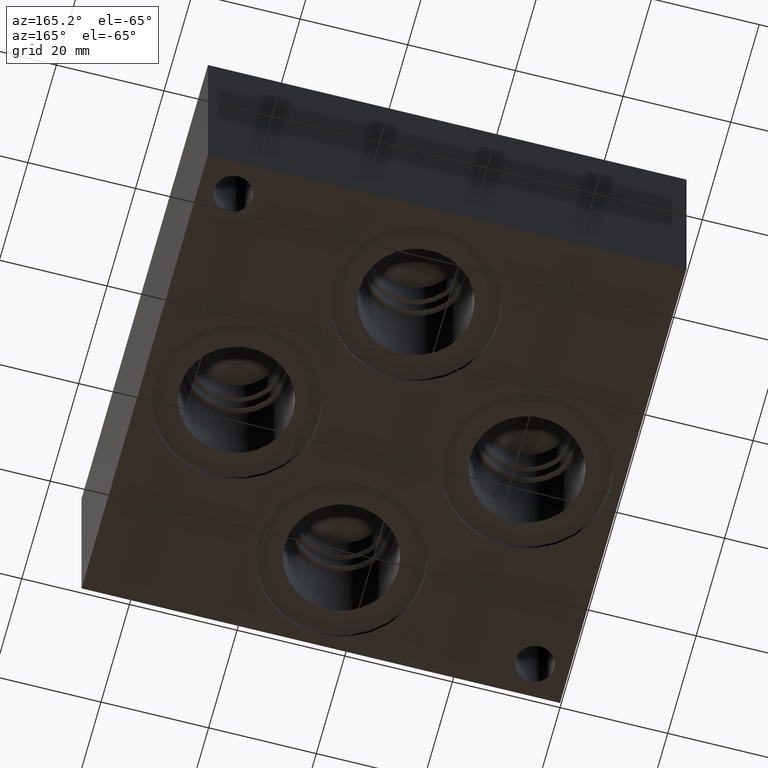
[diagram: clean part render]
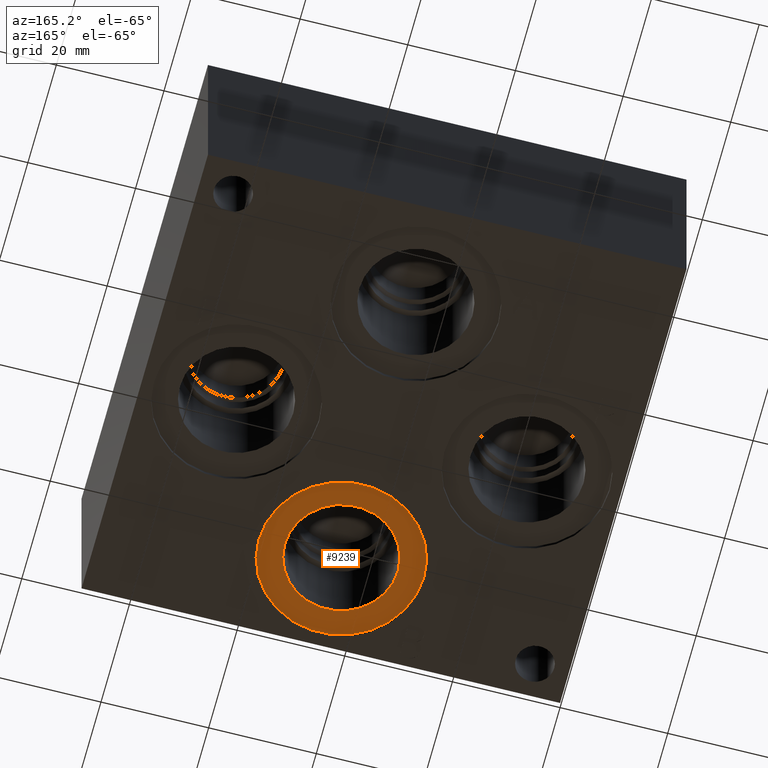
[diagram: same view with one face highlighted and labeled with its STEP entity id]
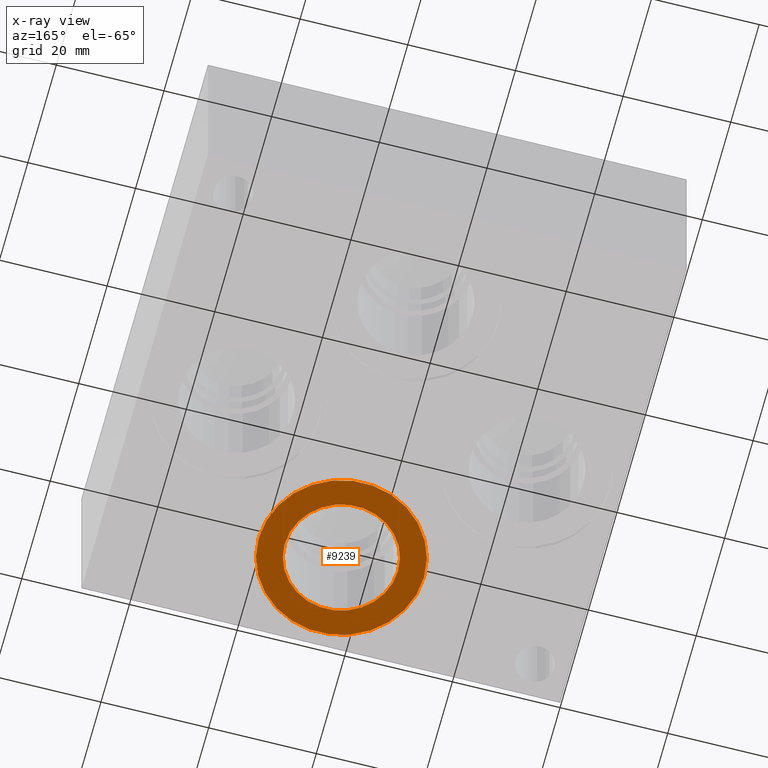
[diagram: x-ray of the same camera — body ghosted, the highlighted face saturated]
A machine part, auxiliary view. The second image highlights one B-rep face of the part: STEP entity #9239.
The next image is the same camera in x-ray: the body ghosted, the highlighted face saturated — about 0% of this face is hidden behind the body in this view.
In plain terms, the highlighted planar face has unit normal (0, 0, 1).
Its self-contained STEP definition (entity closure, byte-faithful):
#111=FACE_BOUND('',#1610,.T.);
#165=CIRCLE('',#9619,15.3416);
#166=CIRCLE('',#9620,15.3416);
#167=CIRCLE('',#9622,10.5283);
#168=CIRCLE('',#9623,10.5283);
#1089=FACE_OUTER_BOUND('',#1609,.T.);
#1609=EDGE_LOOP('',(#7868,#7869));
#1610=EDGE_LOOP('',(#7870,#7871));
#4212=VERTEX_POINT('',#15702);
#4213=VERTEX_POINT('',#15704);
#4214=VERTEX_POINT('',#15708);
#4215=VERTEX_POINT('',#15709);
#5460=EDGE_CURVE('',#4212,#4213,#165,.T.);
#5461=EDGE_CURVE('',#4213,#4212,#166,.T.);
#5462=EDGE_CURVE('',#4214,#4215,#167,.T.);
#5463=EDGE_CURVE('',#4215,#4214,#168,.T.);
#7868=ORIENTED_EDGE('',*,*,#5461,.F.);
#7869=ORIENTED_EDGE('',*,*,#5460,.F.);
#7870=ORIENTED_EDGE('',*,*,#5462,.T.);
#7871=ORIENTED_EDGE('',*,*,#5463,.T.);
#8419=PLANE('',#9621);
#9239=ADVANCED_FACE('',(#1089,#111),#8419,.F.);
#9619=AXIS2_PLACEMENT_3D('',#15705,#11216,#11217);
#9620=AXIS2_PLACEMENT_3D('',#15706,#11218,#11219);
#9621=AXIS2_PLACEMENT_3D('',#15707,#11220,#11221);
#9622=AXIS2_PLACEMENT_3D('',#15710,#11222,#11223);
#9623=AXIS2_PLACEMENT_3D('',#15711,#11224,#11225);
#11216=DIRECTION('center_axis',(0.,0.,1.));
#11217=DIRECTION('ref_axis',(1.,0.,0.));
#11218=DIRECTION('center_axis',(0.,0.,1.));
#11219=DIRECTION('ref_axis',(1.,0.,0.));
#11220=DIRECTION('center_axis',(0.,0.,1.));
#11221=DIRECTION('ref_axis',(1.,0.,0.));
#11222=DIRECTION('center_axis',(0.,0.,1.));
#11223=DIRECTION('ref_axis',(1.,0.,0.));
#11224=DIRECTION('center_axis',(0.,0.,1.));
#11225=DIRECTION('ref_axis',(1.,0.,0.));
#15702=CARTESIAN_POINT('',(29.8958,17.4625,0.7874));
#15704=CARTESIAN_POINT('',(60.579,17.4625,0.7874));
#15705=CARTESIAN_POINT('Origin',(45.2374,17.4625,0.7874));
#15706=CARTESIAN_POINT('Origin',(45.2374,17.4625,0.7874));
#15707=CARTESIAN_POINT('Origin',(55.7657,17.4625,0.7874));
#15708=CARTESIAN_POINT('',(55.7657,17.4625,0.7874));
#15709=CARTESIAN_POINT('',(34.7091,17.4625,0.787400000000001));
#15710=CARTESIAN_POINT('Origin',(45.2374,17.4625,0.7874));
#15711=CARTESIAN_POINT('Origin',(45.2374,17.4625,0.7874));